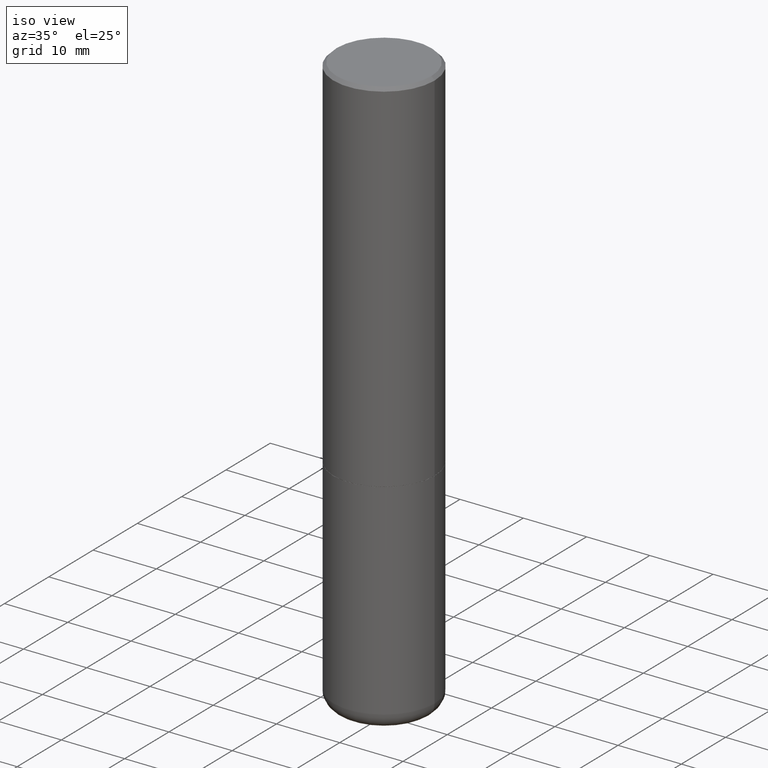
[diagram: clean part render]
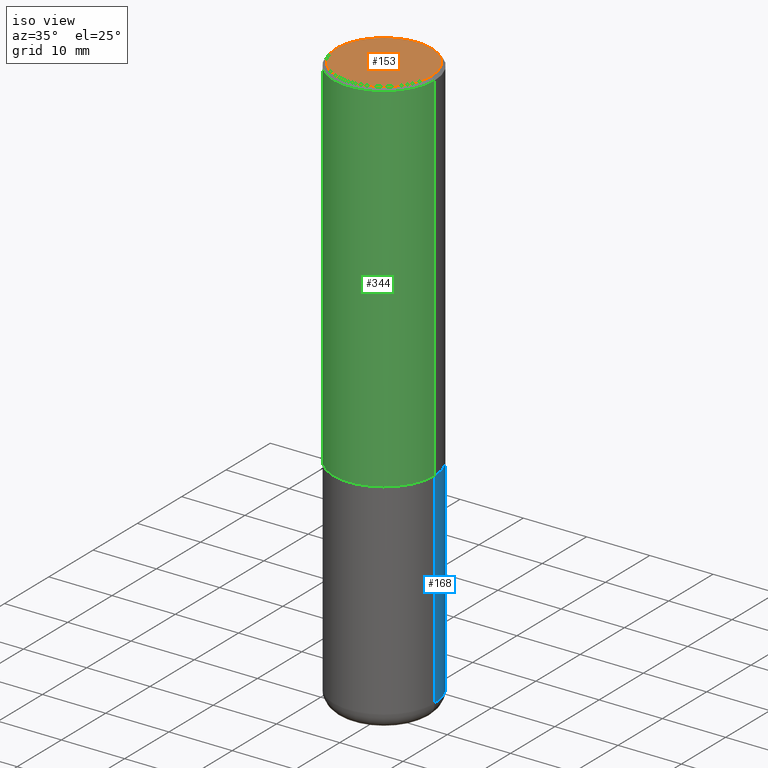
[diagram: same view with three faces highlighted in distinct colors, each labeled with its STEP entity id]
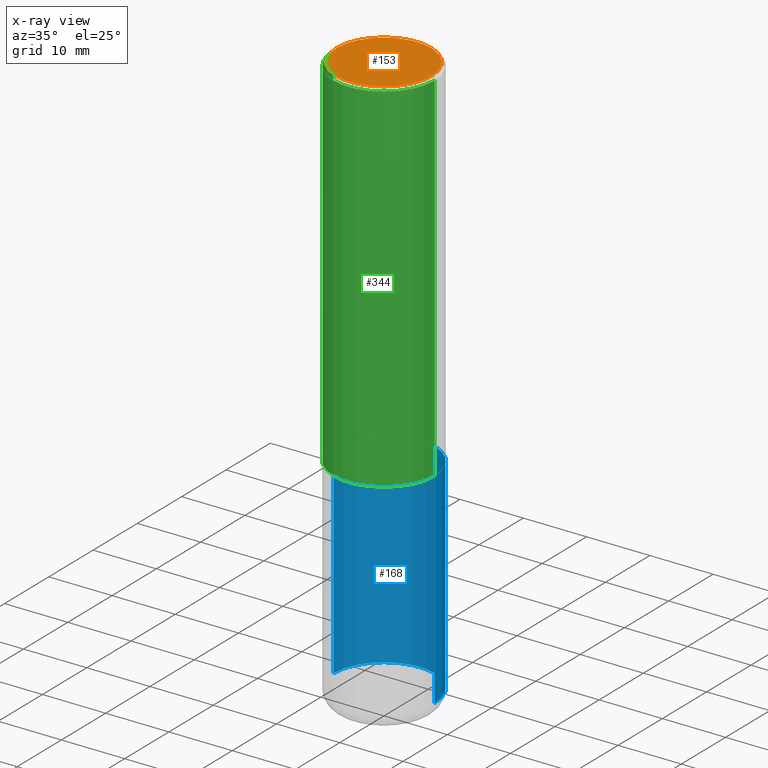
[diagram: x-ray of the same camera — body ghosted, the three highlighted faces saturated]
A machine part, iso view with three faces highlighted in distinct colors.
The next image is the same camera in x-ray (body ghosted, the three faces saturated) — at least one of them is partly hidden behind the body in this view.
Their STEP definitions:

[orange] entity #153 — the highlighted planar face has unit normal (0, -0, -1).
#7 = EDGE_CURVE ( 'NONE', #135, #95, #248, .T. ) ;
#17 = AXIS2_PLACEMENT_3D ( 'NONE', #417, #57, #281 ) ;
#56 = DIRECTION ( 'NONE',  ( -1.000000000000000000, 6.982962677686265922E-15, -4.876176775795935793E-29 ) ) ;
#57 = DIRECTION ( 'NONE',  ( -2.445468806185136597E-29, 3.491481338843145583E-15, 1.000000000000000000 ) ) ;
#93 = CIRCLE ( 'NONE', #17, 0.2949499999999998234 ) ;
#95 = VERTEX_POINT ( 'NONE', #137 ) ;
#102 = CARTESIAN_POINT ( 'NONE',  ( -4.384175940207923203E-45, 6.259441315597878405E-31, 1.792775245842172799E-16 ) ) ;
#123 = ORIENTED_EDGE ( 'NONE', *, *, #295, .T. ) ;
#135 = VERTEX_POINT ( 'NONE', #400 ) ;
#137 = CARTESIAN_POINT ( 'NONE',  ( 0.2949499999999998234, -2.127023677808859286E-15, 1.792775245842319231E-16 ) ) ;
#153 = ADVANCED_FACE ( 'NONE', ( #378 ), #217, .F. ) ;
#217 = PLANE ( 'NONE',  #277 ) ;
#224 = EDGE_LOOP ( 'NONE', ( #269, #123 ) ) ;
#240 = DIRECTION ( 'NONE',  ( 1.000000000000000000, -6.982962677686267499E-15, 4.874125435057324435E-29 ) ) ;
#246 = DIRECTION ( 'NONE',  ( 2.438088387897960049E-29, -3.491481338843145188E-15, -1.000000000000000000 ) ) ;
#248 = CIRCLE ( 'NONE', #402, 0.2949499999999998234 ) ;
#269 = ORIENTED_EDGE ( 'NONE', *, *, #7, .T. ) ;
#277 = AXIS2_PLACEMENT_3D ( 'NONE', #348, #246, #56 ) ;
#281 = DIRECTION ( 'NONE',  ( 1.000000000000000000, -6.982962677686267499E-15, 4.874125435057324435E-29 ) ) ;
#295 = EDGE_CURVE ( 'NONE', #95, #135, #93, .T. ) ;
#348 = CARTESIAN_POINT ( 'NONE',  ( 2.059624841783562880E-15, 0.2949499999999998234, -9.401736585996764239E-16 ) ) ;
#365 = DIRECTION ( 'NONE',  ( -2.445468806185136597E-29, 3.491481338843145583E-15, 1.000000000000000000 ) ) ;
#378 = FACE_OUTER_BOUND ( 'NONE', #224, .T. ) ;
#400 = CARTESIAN_POINT ( 'NONE',  ( -0.2949499999999998234, 2.094539655171995318E-15, 1.792775245842027353E-16 ) ) ;
#402 = AXIS2_PLACEMENT_3D ( 'NONE', #102, #365, #240 ) ;
#417 = CARTESIAN_POINT ( 'NONE',  ( -4.384175940207923203E-45, 6.259441315597878405E-31, 1.792775245842172799E-16 ) ) ;

[blue] entity #168 — the highlighted cylindrical surface (partial cylindrical patch) has radius 7.9997 mm, axis along (-0, 0, 1).
#6 = VERTEX_POINT ( 'NONE', #367 ) ;
#9 = LINE ( 'NONE', #139, #37 ) ;
#37 = VECTOR ( 'NONE', #176, 39.37007874015748143 ) ;
#38 = AXIS2_PLACEMENT_3D ( 'NONE', #155, #189, #165 ) ;
#55 = CIRCLE ( 'NONE', #140, 0.3149500000000000077 ) ;
#77 = LINE ( 'NONE', #385, #389 ) ;
#85 = EDGE_CURVE ( 'NONE', #6, #230, #9, .T. ) ;
#87 = CARTESIAN_POINT ( 'NONE',  ( 5.487632001079445967E-29, -7.834884124364017250E-15, -2.243999999999999773 ) ) ;
#106 = VERTEX_POINT ( 'NONE', #394 ) ;
#121 = CYLINDRICAL_SURFACE ( 'NONE', #263, 0.3149500000000000077 ) ;
#122 = DIRECTION ( 'NONE',  ( 1.000000000000000000, -6.982962677686266711E-15, 0.000000000000000000 ) ) ;
#128 = ORIENTED_EDGE ( 'NONE', *, *, #293, .T. ) ;
#139 = CARTESIAN_POINT ( 'NONE',  ( 0.3149500000000000077, -2.199284095337289871E-15, 1.535751875536930130E-29 ) ) ;
#140 = AXIS2_PLACEMENT_3D ( 'NONE', #87, #386, #122 ) ;
#148 = CARTESIAN_POINT ( 'NONE',  ( 0.3149500000000000077, -1.003416821970130712E-14, -2.243999999999999773 ) ) ;
#155 = CARTESIAN_POINT ( 'NONE',  ( 8.616853885473946211E-29, -1.230258364554770589E-14, -3.523599999999999621 ) ) ;
#165 = DIRECTION ( 'NONE',  ( 1.000000000000000000, -6.982962677686269866E-15, 0.000000000000000000 ) ) ;
#168 = ADVANCED_FACE ( 'NONE', ( #371 ), #121, .T. ) ;
#176 = DIRECTION ( 'NONE',  ( -2.445468806185136877E-29, 3.491481338843145188E-15, 1.000000000000000000 ) ) ;
#180 = DIRECTION ( 'NONE',  ( 1.000000000000000000, -6.982962677686266711E-15, 4.876176775795936353E-29 ) ) ;
#186 = CARTESIAN_POINT ( 'NONE',  ( -0.3149499999999999522, -1.006472929927126990E-14, -3.523599999999999621 ) ) ;
#189 = DIRECTION ( 'NONE',  ( -2.445468806185136597E-29, 3.491481338843145583E-15, 1.000000000000000000 ) ) ;
#194 = ORIENTED_EDGE ( 'NONE', *, *, #85, .F. ) ;
#203 = ORIENTED_EDGE ( 'NONE', *, *, #327, .F. ) ;
#230 = VERTEX_POINT ( 'NONE', #148 ) ;
#263 = AXIS2_PLACEMENT_3D ( 'NONE', #307, #343, #180 ) ;
#293 = EDGE_CURVE ( 'NONE', #6, #393, #305, .T. ) ;
#294 = EDGE_LOOP ( 'NONE', ( #128, #325, #203, #194 ) ) ;
#305 = CIRCLE ( 'NONE', #38, 0.3149500000000000077 ) ;
#307 = CARTESIAN_POINT ( 'NONE',  ( 0.000000000000000000, 0.000000000000000000, 0.000000000000000000 ) ) ;
#325 = ORIENTED_EDGE ( 'NONE', *, *, #411, .T. ) ;
#327 = EDGE_CURVE ( 'NONE', #230, #106, #55, .T. ) ;
#343 = DIRECTION ( 'NONE',  ( -2.445468806185136597E-29, 3.491481338843145583E-15, 1.000000000000000000 ) ) ;
#367 = CARTESIAN_POINT ( 'NONE',  ( 0.3149499999999999522, -1.450186774088499734E-14, -3.523599999999999621 ) ) ;
#371 = FACE_OUTER_BOUND ( 'NONE', #294, .T. ) ;
#385 = CARTESIAN_POINT ( 'NONE',  ( -0.3149500000000000077, 2.237854346276435590E-15, -1.549218606675782676E-29 ) ) ;
#386 = DIRECTION ( 'NONE',  ( -2.445468806185136597E-29, 3.491481338843145583E-15, 1.000000000000000000 ) ) ;
#389 = VECTOR ( 'NONE', #398, 39.37007874015748143 ) ;
#393 = VERTEX_POINT ( 'NONE', #186 ) ;
#394 = CARTESIAN_POINT ( 'NONE',  ( -0.3149500000000000077, -7.830879538679425584E-15, -2.243999999999999773 ) ) ;
#398 = DIRECTION ( 'NONE',  ( -2.445468806185136877E-29, 3.491481338843145188E-15, 1.000000000000000000 ) ) ;
#411 = EDGE_CURVE ( 'NONE', #393, #106, #77, .T. ) ;

[green] entity #344 — the highlighted cylindrical surface (partial cylindrical patch) has radius 7.9997 mm, axis along (-0, 0, 1).
#4 = CYLINDRICAL_SURFACE ( 'NONE', #30, 0.3149500000000001743 ) ;
#8 = CARTESIAN_POINT ( 'NONE',  ( -0.3149500000000002853, -1.712756788624580222E-15, -2.242999999999999883 ) ) ;
#11 = LINE ( 'NONE', #16, #191 ) ;
#16 = CARTESIAN_POINT ( 'NONE',  ( -0.3149500000000001743, 2.237854346276436774E-15, -1.549218606675783237E-29 ) ) ;
#27 = EDGE_CURVE ( 'NONE', #92, #287, #11, .T. ) ;
#30 = AXIS2_PLACEMENT_3D ( 'NONE', #229, #225, #353 ) ;
#33 = DIRECTION ( 'NONE',  ( -2.445468806185136877E-29, 3.491481338843145188E-15, 1.000000000000000000 ) ) ;
#35 = CARTESIAN_POINT ( 'NONE',  ( -0.3149500000000000077, 2.129454468560426573E-15, -0.02000000000000006981 ) ) ;
#61 = ORIENTED_EDGE ( 'NONE', *, *, #363, .T. ) ;
#62 = VECTOR ( 'NONE', #33, 39.37007874015748143 ) ;
#63 = ORIENTED_EDGE ( 'NONE', *, *, #27, .F. ) ;
#68 = CARTESIAN_POINT ( 'NONE',  ( 0.3149500000000002853, -1.003067673836246727E-14, -2.242999999999999883 ) ) ;
#72 = CIRCLE ( 'NONE', #403, 0.3149500000000002853 ) ;
#78 = CARTESIAN_POINT ( 'NONE',  ( 4.890937612370289799E-31, -6.982962677686315028E-17, -0.02000000000000006981 ) ) ;
#82 = DIRECTION ( 'NONE',  ( 1.000000000000000000, -6.982962677686266711E-15, 0.000000000000000000 ) ) ;
#91 = FACE_OUTER_BOUND ( 'NONE', #350, .T. ) ;
#92 = VERTEX_POINT ( 'NONE', #8 ) ;
#108 = VERTEX_POINT ( 'NONE', #68 ) ;
#131 = ORIENTED_EDGE ( 'NONE', *, *, #138, .F. ) ;
#138 = EDGE_CURVE ( 'NONE', #287, #361, #172, .T. ) ;
#144 = AXIS2_PLACEMENT_3D ( 'NONE', #78, #211, #82 ) ;
#156 = CARTESIAN_POINT ( 'NONE',  ( 0.3149500000000001743, -2.199284095337290660E-15, 1.535751875536930690E-29 ) ) ;
#164 = ORIENTED_EDGE ( 'NONE', *, *, #192, .T. ) ;
#172 = CIRCLE ( 'NONE', #144, 0.3149500000000000077 ) ;
#191 = VECTOR ( 'NONE', #267, 39.37007874015748143 ) ;
#192 = EDGE_CURVE ( 'NONE', #92, #108, #72, .T. ) ;
#193 = CARTESIAN_POINT ( 'NONE',  ( 0.3149500000000000077, -2.230543471175007450E-15, -0.02000000000000006981 ) ) ;
#211 = DIRECTION ( 'NONE',  ( -2.445468806185136597E-29, 3.491481338843145583E-15, 1.000000000000000000 ) ) ;
#225 = DIRECTION ( 'NONE',  ( -2.445468806185136597E-29, 3.491481338843145583E-15, 1.000000000000000000 ) ) ;
#229 = CARTESIAN_POINT ( 'NONE',  ( 0.000000000000000000, 0.000000000000000000, 0.000000000000000000 ) ) ;
#251 = DIRECTION ( 'NONE',  ( -2.445468806185136597E-29, 3.491481338843145583E-15, 1.000000000000000000 ) ) ;
#267 = DIRECTION ( 'NONE',  ( -2.445468806185136877E-29, 3.491481338843145188E-15, 1.000000000000000000 ) ) ;
#275 = CARTESIAN_POINT ( 'NONE',  ( 5.485186532273261485E-29, -7.831392643025175821E-15, -2.242999999999999883 ) ) ;
#287 = VERTEX_POINT ( 'NONE', #35 ) ;
#324 = LINE ( 'NONE', #156, #62 ) ;
#344 = ADVANCED_FACE ( 'NONE', ( #91 ), #4, .T. ) ;
#350 = EDGE_LOOP ( 'NONE', ( #63, #164, #61, #131 ) ) ;
#353 = DIRECTION ( 'NONE',  ( 1.000000000000000000, -6.982962677686265922E-15, 4.876176775795935232E-29 ) ) ;
#361 = VERTEX_POINT ( 'NONE', #193 ) ;
#363 = EDGE_CURVE ( 'NONE', #108, #361, #324, .T. ) ;
#403 = AXIS2_PLACEMENT_3D ( 'NONE', #275, #251, #406 ) ;
#406 = DIRECTION ( 'NONE',  ( 1.000000000000000000, -6.982962677686267499E-15, 0.000000000000000000 ) ) ;